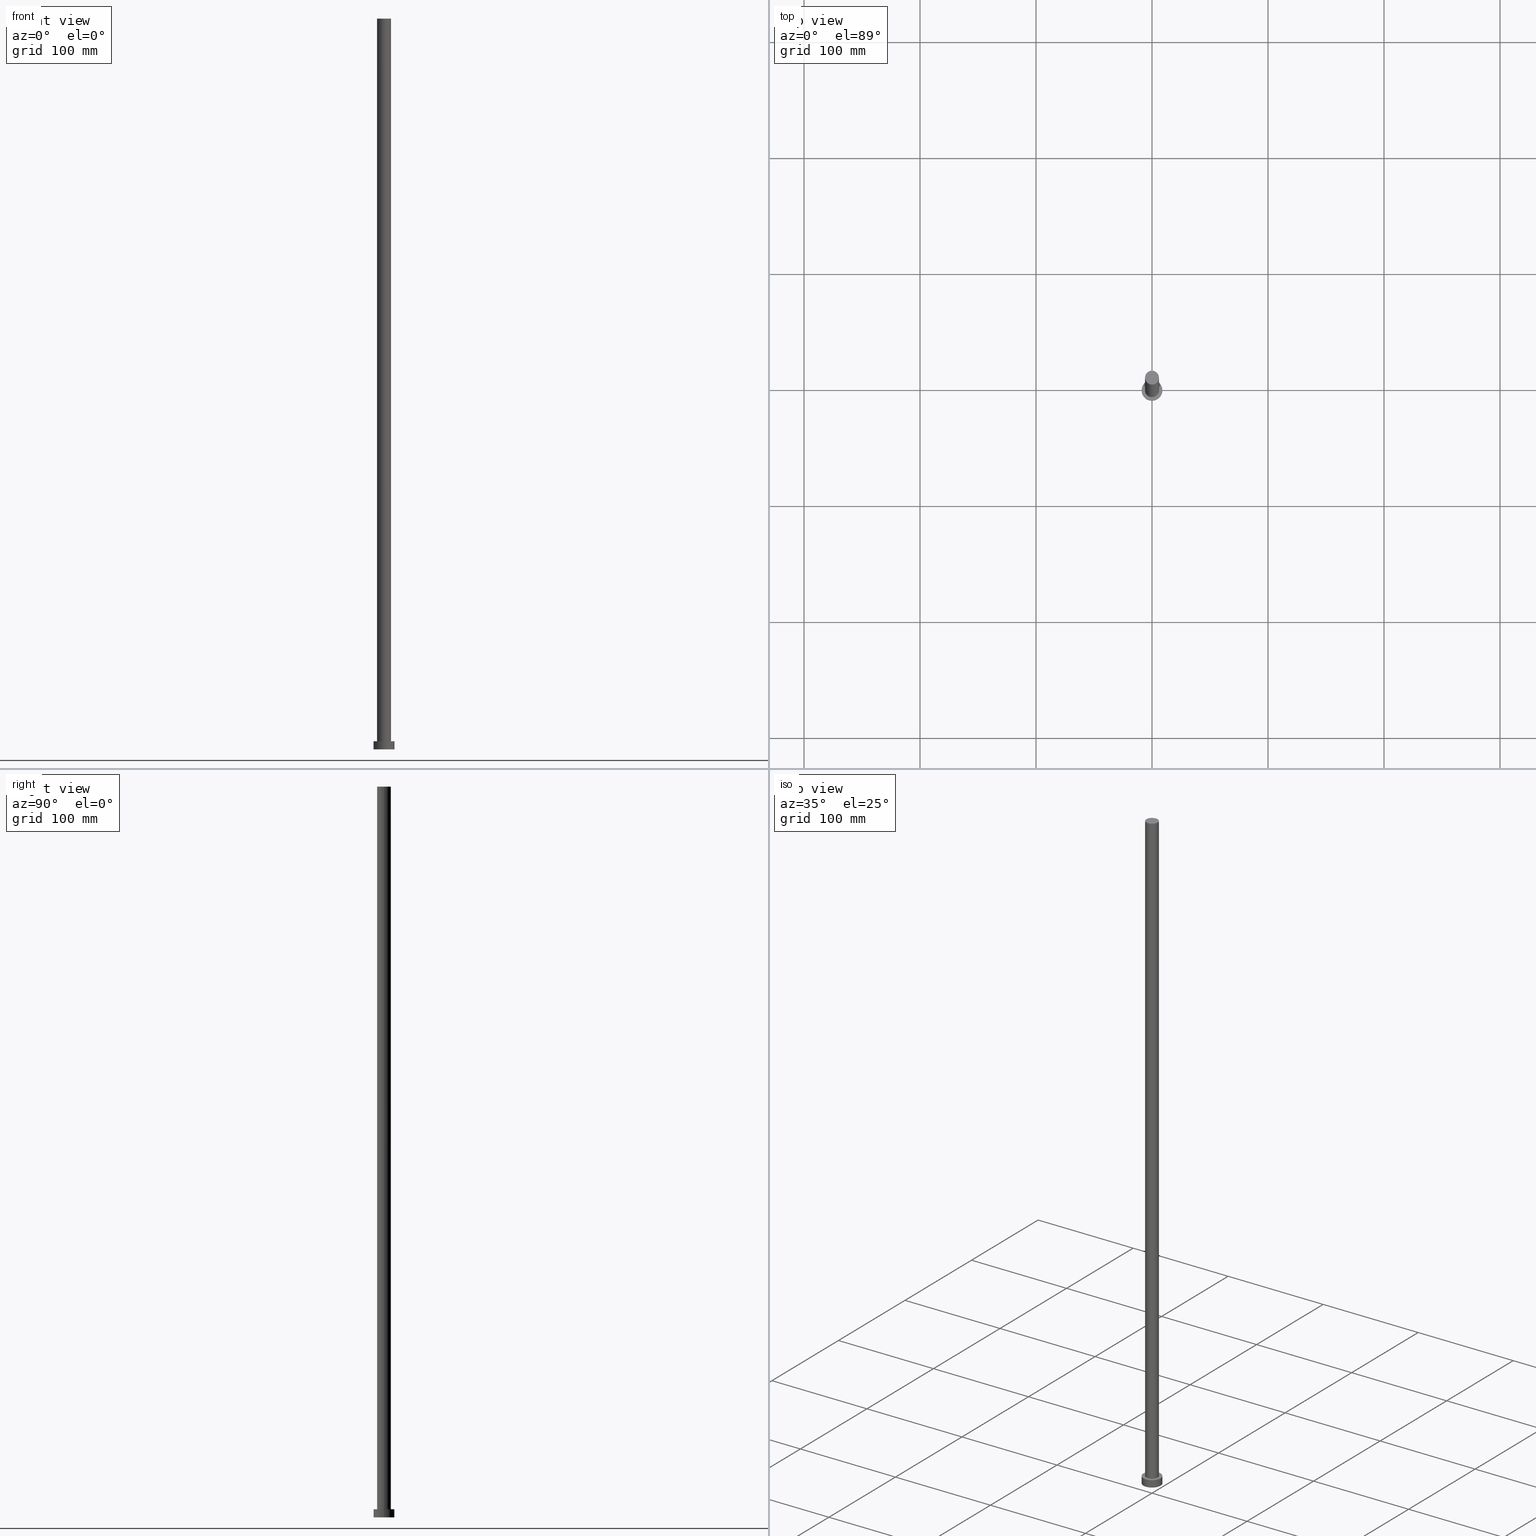
[diagram: canonical four-view strip — front | top / right | iso, engineering-drawing reading convention]
A machine part, canonical four-view strip (front | top / right | iso — engineering-drawing reading convention). The complete STEP part file that produces these views, byte-faithful:
ISO-10303-21;
HEADER;
FILE_DESCRIPTION (( 'STEP AP203' ),
    '1' );
FILE_NAME ('63de.STEP',
    '2023-02-12T11:04:54',
    ( '' ),
    ( '' ),
    'SwSTEP 2.0',
    'SolidWorks 2019',
    '' );
FILE_SCHEMA (( 'CONFIG_CONTROL_DESIGN' ));
ENDSEC;

DATA;
#1 = ORGANIZATION ( 'NEUR�EN�', 'NEUR�EN�', '' ) ;
#2 = DIRECTION ( 'NONE',  ( -1.000000000000000000, 0.000000000000000000, 0.000000000000000000 ) ) ;
#3 = SECURITY_CLASSIFICATION_LEVEL ( 'unclassified' ) ;
#4 = CALENDAR_DATE ( 2023, 12, 2 ) ;
#5 = PERSON_AND_ORGANIZATION ( #25, #1 ) ;
#6 = CARTESIAN_POINT ( 'NONE',  ( -6.000000000000000888, 0.000000000000000000, 630.0000000000000000 ) ) ;
#7 = DATE_TIME_ROLE ( 'creation_date' ) ;
#8 = AXIS2_PLACEMENT_3D ( 'NONE', #119, #34, #187 ) ;
#9 = FACE_BOUND ( 'NONE', #193, .T. ) ;
#10 = CARTESIAN_POINT ( 'NONE',  ( 0.000000000000000000, 0.000000000000000000, 7.000000000000000000 ) ) ;
#11 = DIRECTION ( 'NONE',  ( 1.000000000000000000, 0.000000000000000000, 0.000000000000000000 ) ) ;
#12 = EDGE_CURVE ( 'NONE', #140, #51, #132, .T. ) ;
#13 = EDGE_LOOP ( 'NONE', ( #96, #56, #116, #15 ) ) ;
#14 = ORIENTED_EDGE ( 'NONE', *, *, #112, .T. ) ;
#15 = ORIENTED_EDGE ( 'NONE', *, *, #79, .F. ) ;
#16 = FACE_OUTER_BOUND ( 'NONE', #198, .T. ) ;
#17 = EDGE_CURVE ( 'NONE', #120, #84, #40, .T. ) ;
#18 = CC_DESIGN_APPROVAL ( #154, ( #107 ) ) ;
#19 = DIRECTION ( 'NONE',  ( 1.000000000000000000, 0.000000000000000000, 0.000000000000000000 ) ) ;
#20 = DIRECTION ( 'NONE',  ( 1.000000000000000000, 0.000000000000000000, -0.000000000000000000 ) ) ;
#21 = VECTOR ( 'NONE', #22, 1000.000000000000000 ) ;
#22 = DIRECTION ( 'NONE',  ( -0.000000000000000000, -0.000000000000000000, -1.000000000000000000 ) ) ;
#23 = AXIS2_PLACEMENT_3D ( 'NONE', #201, #57, #217 ) ;
#24 = APPROVAL_ROLE ( '' ) ;
#25 = PERSON ( 'NEUR�EN�', 'NEUR�EN�', 'NEUR�EN�', ('NEUR�EN�'), ('NEUR�EN�'), ('NEUR�EN�') ) ;
#26 = DATE_AND_TIME ( #91, #53 ) ;
#27 = EDGE_CURVE ( 'NONE', #58, #85, #32, .T. ) ;
#28 = CALENDAR_DATE ( 2023, 12, 2 ) ;
#29 = CIRCLE ( 'NONE', #59, 9.000000000000000000 ) ;
#30 = CARTESIAN_POINT ( 'NONE',  ( 0.000000000000000000, 0.000000000000000000, 7.000000000000000000 ) ) ;
#31 = PRODUCT_DEFINITION ( 'NEZN�M�', '', #107, #65 ) ;
#32 = CIRCLE ( 'NONE', #141, 6.000000000000000888 ) ;
#33 = SECURITY_CLASSIFICATION ( '', '', #3 ) ;
#34 = DIRECTION ( 'NONE',  ( 0.000000000000000000, 0.000000000000000000, 1.000000000000000000 ) ) ;
#35 = EDGE_LOOP ( 'NONE', ( #171, #196 ) ) ;
#36 = CARTESIAN_POINT ( 'NONE',  ( -6.000000000000000888, 0.000000000000000000, 630.0000000000000000 ) ) ;
#37 = VERTEX_POINT ( 'NONE', #180 ) ;
#38 = ORIENTED_EDGE ( 'NONE', *, *, #79, .T. ) ;
#39 = DIRECTION ( 'NONE',  ( 0.000000000000000000, 0.000000000000000000, 1.000000000000000000 ) ) ;
#40 = CIRCLE ( 'NONE', #72, 9.000000000000000000 ) ;
#41 = CARTESIAN_POINT ( 'NONE',  ( 9.000000000000000000, 1.102182119232617714E-15, 7.000000000000000000 ) ) ;
#42 = CARTESIAN_POINT ( 'NONE',  ( 0.000000000000000000, 0.000000000000000000, 7.000000000000000000 ) ) ;
#43 = DIRECTION ( 'NONE',  ( 0.000000000000000000, 0.000000000000000000, 1.000000000000000000 ) ) ;
#44 = CIRCLE ( 'NONE', #80, 6.000000000000000888 ) ;
#45 = APPROVAL_ROLE ( '' ) ;
#46 = DIRECTION ( 'NONE',  ( 0.000000000000000000, 0.000000000000000000, 1.000000000000000000 ) ) ;
#47 = COORDINATED_UNIVERSAL_TIME_OFFSET ( 1, 0, .AHEAD. ) ;
#48 = EDGE_CURVE ( 'NONE', #140, #85, #248, .T. ) ;
#49 = CYLINDRICAL_SURFACE ( 'NONE', #186, 6.000000000000000888 ) ;
#50 = DIRECTION ( 'NONE',  ( -1.000000000000000000, 0.000000000000000000, 0.000000000000000000 ) ) ;
#51 = VERTEX_POINT ( 'NONE', #214 ) ;
#52 = DIRECTION ( 'NONE',  ( -0.000000000000000000, -0.000000000000000000, -1.000000000000000000 ) ) ;
#53 = LOCAL_TIME ( 12, 4, 54.00000000000000000, #184 ) ;
#54 = CARTESIAN_POINT ( 'NONE',  ( 0.000000000000000000, 0.000000000000000000, 0.000000000000000000 ) ) ;
#55 =( NAMED_UNIT ( * ) SI_UNIT ( $, .STERADIAN. ) SOLID_ANGLE_UNIT ( ) );
#56 = ORIENTED_EDGE ( 'NONE', *, *, #175, .T. ) ;
#57 = DIRECTION ( 'NONE',  ( 0.000000000000000000, 0.000000000000000000, 1.000000000000000000 ) ) ;
#58 = VERTEX_POINT ( 'NONE', #250 ) ;
#59 = AXIS2_PLACEMENT_3D ( 'NONE', #30, #249, #157 ) ;
#60 = CC_DESIGN_DATE_AND_TIME_ASSIGNMENT ( #167, #145, ( #33 ) ) ;
#61 = PERSON_AND_ORGANIZATION_ROLE ( 'creator' ) ;
#62 = VECTOR ( 'NONE', #114, 1000.000000000000000 ) ;
#63 = PERSON_AND_ORGANIZATION ( #25, #1 ) ;
#64 = CC_DESIGN_APPROVAL ( #239, ( #33 ) ) ;
#65 = DESIGN_CONTEXT ( 'detailed design', #70, 'design' ) ;
#66 = ADVANCED_FACE ( 'NONE', ( #209 ), #194, .F. ) ;
#67 = DATE_AND_TIME ( #4, #206 ) ;
#68 = CALENDAR_DATE ( 2023, 12, 2 ) ;
#69 = CYLINDRICAL_SURFACE ( 'NONE', #244, 9.000000000000000000 ) ;
#70 = APPLICATION_CONTEXT ( 'configuration controlled 3d designs of mechanical parts and assemblies' ) ;
#71 = PERSON_AND_ORGANIZATION ( #25, #1 ) ;
#72 = AXIS2_PLACEMENT_3D ( 'NONE', #54, #39, #123 ) ;
#73 = CC_DESIGN_PERSON_AND_ORGANIZATION_ASSIGNMENT ( #185, #106, ( #107 ) ) ;
#74 = CARTESIAN_POINT ( 'NONE',  ( 6.000000000000000888, 7.347880794884120722E-16, 630.0000000000000000 ) ) ;
#75 = CC_DESIGN_APPROVAL ( #245, ( #31 ) ) ;
#76 = EDGE_LOOP ( 'NONE', ( #162, #254, #38, #142 ) ) ;
#77 = ORIENTED_EDGE ( 'NONE', *, *, #199, .F. ) ;
#78 = CARTESIAN_POINT ( 'NONE',  ( 9.000000000000000000, 1.102182119232617714E-15, 0.000000000000000000 ) ) ;
#79 = EDGE_CURVE ( 'NONE', #236, #120, #93, .T. ) ;
#80 = AXIS2_PLACEMENT_3D ( 'NONE', #242, #155, #111 ) ;
#81 = ORIENTED_EDGE ( 'NONE', *, *, #204, .F. ) ;
#82 = LOCAL_TIME ( 12, 4, 54.00000000000000000, #166 ) ;
#83 = CARTESIAN_POINT ( 'NONE',  ( 0.000000000000000000, 0.000000000000000000, 630.0000000000000000 ) ) ;
#84 = VERTEX_POINT ( 'NONE', #78 ) ;
#85 = VERTEX_POINT ( 'NONE', #131 ) ;
#86 = LOCAL_TIME ( 12, 4, 54.00000000000000000, #133 ) ;
#87 =( NAMED_UNIT ( * ) PLANE_ANGLE_UNIT ( ) SI_UNIT ( $, .RADIAN. ) );
#88 = PERSON_AND_ORGANIZATION ( #25, #1 ) ;
#89 = PERSON_AND_ORGANIZATION ( #25, #1 ) ;
#90 = PERSON_AND_ORGANIZATION_ROLE ( 'design_supplier' ) ;
#91 = CALENDAR_DATE ( 2023, 12, 2 ) ;
#92 = CC_DESIGN_SECURITY_CLASSIFICATION ( #33, ( #107 ) ) ;
#93 = LINE ( 'NONE', #197, #62 ) ;
#94 = CLOSED_SHELL ( 'NONE', ( #210, #230, #127, #122, #66, #168, #181 ) ) ;
#95 = ORIENTED_EDGE ( 'NONE', *, *, #27, .T. ) ;
#96 = ORIENTED_EDGE ( 'NONE', *, *, #223, .F. ) ;
#97 = DIRECTION ( 'NONE',  ( 0.000000000000000000, 0.000000000000000000, 1.000000000000000000 ) ) ;
#98 = CC_DESIGN_PERSON_AND_ORGANIZATION_ASSIGNMENT ( #110, #130, ( #211 ) ) ;
#99 = DIRECTION ( 'NONE',  ( 0.000000000000000000, 0.000000000000000000, 1.000000000000000000 ) ) ;
#100 = CARTESIAN_POINT ( 'NONE',  ( 0.000000000000000000, 0.000000000000000000, 0.000000000000000000 ) ) ;
#101 = AXIS2_PLACEMENT_3D ( 'NONE', #218, #251, #11 ) ;
#102 = DIRECTION ( 'NONE',  ( 0.000000000000000000, 0.000000000000000000, 1.000000000000000000 ) ) ;
#103 = CIRCLE ( 'NONE', #226, 9.000000000000000000 ) ;
#104 = APPROVAL_STATUS ( 'not_yet_approved' ) ;
#105 = PRODUCT_RELATED_PRODUCT_CATEGORY ( 'detail', '', ( #211 ) ) ;
#106 = PERSON_AND_ORGANIZATION_ROLE ( 'creator' ) ;
#107 = PRODUCT_DEFINITION_FORMATION_WITH_SPECIFIED_SOURCE ( 'LIBOVOLN�', '', #211, .NOT_KNOWN. ) ;
#108 = LINE ( 'NONE', #74, #213 ) ;
#109 = CC_DESIGN_PERSON_AND_ORGANIZATION_ASSIGNMENT ( #5, #90, ( #107 ) ) ;
#110 = PERSON_AND_ORGANIZATION ( #25, #1 ) ;
#111 = DIRECTION ( 'NONE',  ( 1.000000000000000000, 0.000000000000000000, 0.000000000000000000 ) ) ;
#112 = EDGE_CURVE ( 'NONE', #51, #140, #44, .T. ) ;
#113 = DIRECTION ( 'NONE',  ( -0.000000000000000000, -0.000000000000000000, -1.000000000000000000 ) ) ;
#114 = DIRECTION ( 'NONE',  ( -0.000000000000000000, -0.000000000000000000, -1.000000000000000000 ) ) ;
#115 = AXIS2_PLACEMENT_3D ( 'NONE', #158, #46, #192 ) ;
#116 = ORIENTED_EDGE ( 'NONE', *, *, #204, .T. ) ;
#117 = EDGE_CURVE ( 'NONE', #236, #37, #29, .T. ) ;
#118 = CIRCLE ( 'NONE', #23, 9.000000000000000000 ) ;
#119 = CARTESIAN_POINT ( 'NONE',  ( 0.000000000000000000, 0.000000000000000000, 0.000000000000000000 ) ) ;
#120 = VERTEX_POINT ( 'NONE', #153 ) ;
#121 = EDGE_LOOP ( 'NONE', ( #176, #14 ) ) ;
#122 = ADVANCED_FACE ( 'NONE', ( #9, #229 ), #228, .T. ) ;
#123 = DIRECTION ( 'NONE',  ( 1.000000000000000000, 0.000000000000000000, 0.000000000000000000 ) ) ;
#124 = CARTESIAN_POINT ( 'NONE',  ( -9.000000000000000000, 0.000000000000000000, 7.000000000000000000 ) ) ;
#125 = FACE_OUTER_BOUND ( 'NONE', #13, .T. ) ;
#126 = VECTOR ( 'NONE', #113, 1000.000000000000000 ) ;
#127 = ADVANCED_FACE ( 'NONE', ( #246 ), #69, .T. ) ;
#128 = DATE_AND_TIME ( #68, #86 ) ;
#129 = APPROVAL_ROLE ( '' ) ;
#130 = PERSON_AND_ORGANIZATION_ROLE ( 'design_owner' ) ;
#131 = CARTESIAN_POINT ( 'NONE',  ( -6.000000000000000888, 0.000000000000000000, 7.000000000000000000 ) ) ;
#132 = CIRCLE ( 'NONE', #101, 6.000000000000000888 ) ;
#133 = COORDINATED_UNIVERSAL_TIME_OFFSET ( 1, 0, .AHEAD. ) ;
#134 = CARTESIAN_POINT ( 'NONE',  ( 0.000000000000000000, 0.000000000000000000, 630.0000000000000000 ) ) ;
#135 = PRODUCT_DEFINITION_SHAPE ( 'NONE', 'NONE',  #31 ) ;
#136 = ORIENTED_EDGE ( 'NONE', *, *, #148, .T. ) ;
#137 = AXIS2_PLACEMENT_3D ( 'NONE', #83, #102, #20 ) ;
#138 = DIRECTION ( 'NONE',  ( 1.000000000000000000, 0.000000000000000000, 0.000000000000000000 ) ) ;
#139 = LINE ( 'NONE', #41, #21 ) ;
#140 = VERTEX_POINT ( 'NONE', #36 ) ;
#141 = AXIS2_PLACEMENT_3D ( 'NONE', #202, #99, #19 ) ;
#142 = ORIENTED_EDGE ( 'NONE', *, *, #17, .T. ) ;
#143 = DIRECTION ( 'NONE',  ( -1.000000000000000000, 0.000000000000000000, 0.000000000000000000 ) ) ;
#144 = CARTESIAN_POINT ( 'NONE',  ( 0.000000000000000000, 0.000000000000000000, 630.0000000000000000 ) ) ;
#145 = DATE_TIME_ROLE ( 'classification_date' ) ;
#146 = UNCERTAINTY_MEASURE_WITH_UNIT (LENGTH_MEASURE( 1.000000000000000082E-05 ), #231, 'distance_accuracy_value', 'NONE');
#147 = AXIS2_PLACEMENT_3D ( 'NONE', #144, #52, #183 ) ;
#148 = EDGE_CURVE ( 'NONE', #51, #58, #108, .T. ) ;
#149 = APPROVAL_DATE_TIME ( #128, #239 ) ;
#150 = DIRECTION ( 'NONE',  ( -0.000000000000000000, -0.000000000000000000, -1.000000000000000000 ) ) ;
#151 = PERSON_AND_ORGANIZATION_ROLE ( 'classification_officer' ) ;
#152 = APPROVAL_PERSON_ORGANIZATION ( #63, #245, #129 ) ;
#153 = CARTESIAN_POINT ( 'NONE',  ( -9.000000000000000000, 0.000000000000000000, 0.000000000000000000 ) ) ;
#154 = APPROVAL ( #104, 'NEUR�EN�' ) ;
#155 = DIRECTION ( 'NONE',  ( 0.000000000000000000, 0.000000000000000000, 1.000000000000000000 ) ) ;
#156 = ORIENTED_EDGE ( 'NONE', *, *, #199, .T. ) ;
#157 = DIRECTION ( 'NONE',  ( 1.000000000000000000, 0.000000000000000000, 0.000000000000000000 ) ) ;
#158 = CARTESIAN_POINT ( 'NONE',  ( 0.000000000000000000, 0.000000000000000000, 7.000000000000000000 ) ) ;
#159 = ORIENTED_EDGE ( 'NONE', *, *, #148, .F. ) ;
#160 = CIRCLE ( 'NONE', #220, 6.000000000000000888 ) ;
#161 = CYLINDRICAL_SURFACE ( 'NONE', #164, 9.000000000000000000 ) ;
#162 = ORIENTED_EDGE ( 'NONE', *, *, #175, .F. ) ;
#163 = CARTESIAN_POINT ( 'NONE',  ( 0.000000000000000000, 0.000000000000000000, 0.000000000000000000 ) ) ;
#164 = AXIS2_PLACEMENT_3D ( 'NONE', #255, #233, #2 ) ;
#165 = APPLICATION_PROTOCOL_DEFINITION ( 'international standard', 'config_control_design', 1994, #172 ) ;
#166 = COORDINATED_UNIVERSAL_TIME_OFFSET ( 1, 0, .AHEAD. ) ;
#167 = DATE_AND_TIME ( #28, #195 ) ;
#168 = ADVANCED_FACE ( 'NONE', ( #224 ), #49, .T. ) ;
#169 = APPROVAL_PERSON_ORGANIZATION ( #71, #154, #45 ) ;
#170 = DIRECTION ( 'NONE',  ( -0.000000000000000000, -0.000000000000000000, -1.000000000000000000 ) ) ;
#171 = ORIENTED_EDGE ( 'NONE', *, *, #117, .T. ) ;
#172 = APPLICATION_CONTEXT ( 'configuration controlled 3d designs of mechanical parts and assemblies' ) ;
#173 = ORIENTED_EDGE ( 'NONE', *, *, #12, .F. ) ;
#174 = EDGE_LOOP ( 'NONE', ( #219, #81 ) ) ;
#175 = EDGE_CURVE ( 'NONE', #37, #84, #139, .T. ) ;
#176 = ORIENTED_EDGE ( 'NONE', *, *, #12, .T. ) ;
#177 = APPROVAL_PERSON_ORGANIZATION ( #241, #239, #24 ) ;
#178 = ADVANCED_BREP_SHAPE_REPRESENTATION ( '63de', ( #252, #190 ), #253 ) ;
#179 = MECHANICAL_CONTEXT ( 'NONE', #172, 'mechanical' ) ;
#180 = CARTESIAN_POINT ( 'NONE',  ( 9.000000000000000000, 1.102182119232617714E-15, 7.000000000000000000 ) ) ;
#181 = ADVANCED_FACE ( 'NONE', ( #221 ), #237, .T. ) ;
#182 = DIRECTION ( 'NONE',  ( 1.000000000000000000, 0.000000000000000000, 0.000000000000000000 ) ) ;
#183 = DIRECTION ( 'NONE',  ( -1.000000000000000000, 0.000000000000000000, 0.000000000000000000 ) ) ;
#184 = COORDINATED_UNIVERSAL_TIME_OFFSET ( 1, 0, .AHEAD. ) ;
#185 = PERSON_AND_ORGANIZATION ( #25, #1 ) ;
#186 = AXIS2_PLACEMENT_3D ( 'NONE', #134, #247, #143 ) ;
#187 = DIRECTION ( 'NONE',  ( 1.000000000000000000, 0.000000000000000000, -0.000000000000000000 ) ) ;
#188 = COORDINATED_UNIVERSAL_TIME_OFFSET ( 1, 0, .AHEAD. ) ;
#189 = APPROVAL_DATE_TIME ( #26, #154 ) ;
#190 = AXIS2_PLACEMENT_3D ( 'NONE', #163, #205, #182 ) ;
#191 = CC_DESIGN_PERSON_AND_ORGANIZATION_ASSIGNMENT ( #89, #151, ( #33 ) ) ;
#192 = DIRECTION ( 'NONE',  ( 1.000000000000000000, 0.000000000000000000, -0.000000000000000000 ) ) ;
#193 = EDGE_LOOP ( 'NONE', ( #77, #215 ) ) ;
#194 = PLANE ( 'NONE',  #8 ) ;
#195 = LOCAL_TIME ( 12, 4, 54.00000000000000000, #47 ) ;
#196 = ORIENTED_EDGE ( 'NONE', *, *, #223, .T. ) ;
#197 = CARTESIAN_POINT ( 'NONE',  ( -9.000000000000000000, 0.000000000000000000, 7.000000000000000000 ) ) ;
#198 = EDGE_LOOP ( 'NONE', ( #212, #136, #95, #234 ) ) ;
#199 = EDGE_CURVE ( 'NONE', #85, #58, #160, .T. ) ;
#200 = ORIENTED_EDGE ( 'NONE', *, *, #48, .T. ) ;
#201 = CARTESIAN_POINT ( 'NONE',  ( 0.000000000000000000, 0.000000000000000000, 7.000000000000000000 ) ) ;
#202 = CARTESIAN_POINT ( 'NONE',  ( 0.000000000000000000, 0.000000000000000000, 7.000000000000000000 ) ) ;
#203 = DIRECTION ( 'NONE',  ( 1.000000000000000000, 0.000000000000000000, 0.000000000000000000 ) ) ;
#204 = EDGE_CURVE ( 'NONE', #84, #120, #103, .T. ) ;
#205 = DIRECTION ( 'NONE',  ( 0.000000000000000000, 0.000000000000000000, 1.000000000000000000 ) ) ;
#206 = LOCAL_TIME ( 12, 4, 54.00000000000000000, #188 ) ;
#207 = APPROVAL_DATE_TIME ( #243, #245 ) ;
#208 = APPLICATION_PROTOCOL_DEFINITION ( 'international standard', 'config_control_design', 1994, #70 ) ;
#209 = FACE_OUTER_BOUND ( 'NONE', #174, .T. ) ;
#210 = ADVANCED_FACE ( 'NONE', ( #16 ), #235, .T. ) ;
#211 = PRODUCT ( '63de', '63de', '', ( #179 ) ) ;
#212 = ORIENTED_EDGE ( 'NONE', *, *, #112, .F. ) ;
#213 = VECTOR ( 'NONE', #170, 1000.000000000000000 ) ;
#214 = CARTESIAN_POINT ( 'NONE',  ( 6.000000000000000888, 7.347880794884120722E-16, 630.0000000000000000 ) ) ;
#215 = ORIENTED_EDGE ( 'NONE', *, *, #27, .F. ) ;
#216 = CC_DESIGN_PERSON_AND_ORGANIZATION_ASSIGNMENT ( #88, #61, ( #31 ) ) ;
#217 = DIRECTION ( 'NONE',  ( 1.000000000000000000, 0.000000000000000000, 0.000000000000000000 ) ) ;
#218 = CARTESIAN_POINT ( 'NONE',  ( 0.000000000000000000, 0.000000000000000000, 630.0000000000000000 ) ) ;
#219 = ORIENTED_EDGE ( 'NONE', *, *, #17, .F. ) ;
#220 = AXIS2_PLACEMENT_3D ( 'NONE', #42, #43, #203 ) ;
#221 = FACE_OUTER_BOUND ( 'NONE', #121, .T. ) ;
#222 = APPROVAL_STATUS ( 'not_yet_approved' ) ;
#223 = EDGE_CURVE ( 'NONE', #37, #236, #118, .T. ) ;
#224 = FACE_OUTER_BOUND ( 'NONE', #232, .T. ) ;
#225 = SHAPE_DEFINITION_REPRESENTATION ( #135, #178 ) ;
#226 = AXIS2_PLACEMENT_3D ( 'NONE', #100, #97, #138 ) ;
#227 = CC_DESIGN_DATE_AND_TIME_ASSIGNMENT ( #67, #7, ( #31 ) ) ;
#228 = PLANE ( 'NONE',  #115 ) ;
#229 = FACE_OUTER_BOUND ( 'NONE', #35, .T. ) ;
#230 = ADVANCED_FACE ( 'NONE', ( #125 ), #161, .T. ) ;
#231 =( LENGTH_UNIT ( ) NAMED_UNIT ( * ) SI_UNIT ( .MILLI., .METRE. ) );
#232 = EDGE_LOOP ( 'NONE', ( #159, #173, #200, #156 ) ) ;
#233 = DIRECTION ( 'NONE',  ( -0.000000000000000000, -0.000000000000000000, -1.000000000000000000 ) ) ;
#234 = ORIENTED_EDGE ( 'NONE', *, *, #48, .F. ) ;
#235 = CYLINDRICAL_SURFACE ( 'NONE', #147, 6.000000000000000888 ) ;
#236 = VERTEX_POINT ( 'NONE', #124 ) ;
#237 = PLANE ( 'NONE',  #137 ) ;
#238 = CALENDAR_DATE ( 2023, 12, 2 ) ;
#239 = APPROVAL ( #240, 'NEUR�EN�' ) ;
#240 = APPROVAL_STATUS ( 'not_yet_approved' ) ;
#241 = PERSON_AND_ORGANIZATION ( #25, #1 ) ;
#242 = CARTESIAN_POINT ( 'NONE',  ( 0.000000000000000000, 0.000000000000000000, 630.0000000000000000 ) ) ;
#243 = DATE_AND_TIME ( #238, #82 ) ;
#244 = AXIS2_PLACEMENT_3D ( 'NONE', #10, #150, #50 ) ;
#245 = APPROVAL ( #222, 'NEUR�EN�' ) ;
#246 = FACE_OUTER_BOUND ( 'NONE', #76, .T. ) ;
#247 = DIRECTION ( 'NONE',  ( -0.000000000000000000, -0.000000000000000000, -1.000000000000000000 ) ) ;
#248 = LINE ( 'NONE', #6, #126 ) ;
#249 = DIRECTION ( 'NONE',  ( 0.000000000000000000, 0.000000000000000000, 1.000000000000000000 ) ) ;
#250 = CARTESIAN_POINT ( 'NONE',  ( 6.000000000000000888, 7.347880794884120722E-16, 7.000000000000000000 ) ) ;
#251 = DIRECTION ( 'NONE',  ( 0.000000000000000000, 0.000000000000000000, 1.000000000000000000 ) ) ;
#252 = MANIFOLD_SOLID_BREP ( 'P�idat vysunut�m3', #94 ) ;
#253 =( GEOMETRIC_REPRESENTATION_CONTEXT ( 3 ) GLOBAL_UNCERTAINTY_ASSIGNED_CONTEXT ( ( #146 ) ) GLOBAL_UNIT_ASSIGNED_CONTEXT ( ( #231, #87, #55 ) ) REPRESENTATION_CONTEXT ( 'NONE', 'WORKASPACE' ) );
#254 = ORIENTED_EDGE ( 'NONE', *, *, #117, .F. ) ;
#255 = CARTESIAN_POINT ( 'NONE',  ( 0.000000000000000000, 0.000000000000000000, 7.000000000000000000 ) ) ;
ENDSEC;
END-ISO-10303-21;
